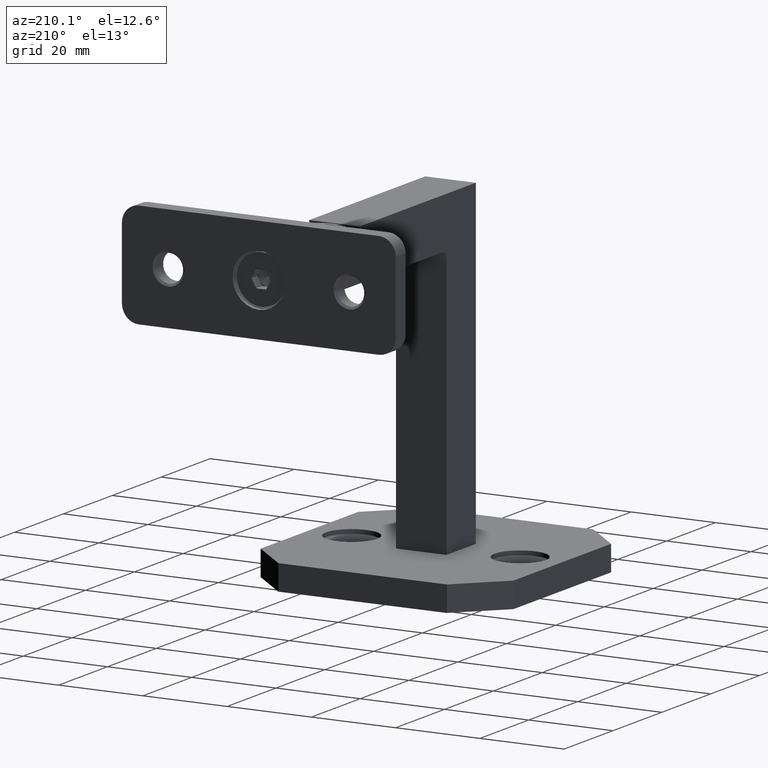
[diagram: clean part render]
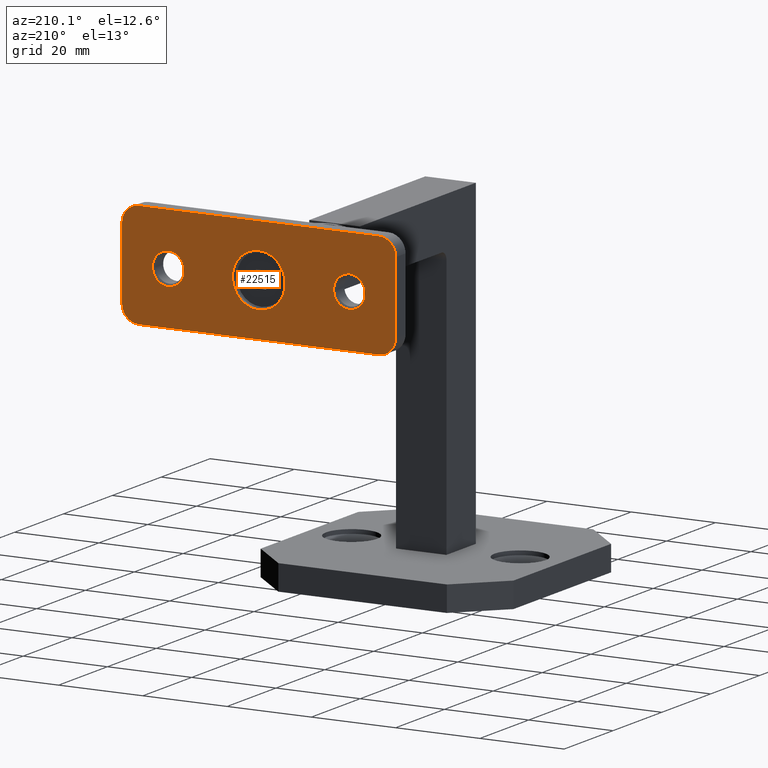
[diagram: same view with one face highlighted and labeled with its STEP entity id]
A machine part, auxiliary view. The second image highlights one B-rep face of the part: STEP entity #22515.
In plain terms, the highlighted planar face has unit normal (0, 1, 0).
Its self-contained STEP definition (entity closure, byte-faithful):
#185 = EDGE_CURVE ( 'NONE', #4837, #14212, #5706, .T. ) ;
#271 = VERTEX_POINT ( 'NONE', #8776 ) ;
#304 = DIRECTION ( 'NONE',  ( 0.000000000000000000, 0.000000000000000000, 1.000000000000000000 ) ) ;
#410 = FACE_OUTER_BOUND ( 'NONE', #23477, .T. ) ;
#511 = ORIENTED_EDGE ( 'NONE', *, *, #15464, .T. ) ;
#690 = CIRCLE ( 'NONE', #17019, 4.000000000000000000 ) ;
#985 = FACE_BOUND ( 'NONE', #10145, .T. ) ;
#1002 = ORIENTED_EDGE ( 'NONE', *, *, #13905, .T. ) ;
#1318 = VERTEX_POINT ( 'NONE', #7329 ) ;
#1459 = ORIENTED_EDGE ( 'NONE', *, *, #19440, .F. ) ;
#1466 = DIRECTION ( 'NONE',  ( -0.000000000000000000, -0.000000000000000000, -1.000000000000000000 ) ) ;
#1764 = VERTEX_POINT ( 'NONE', #14168 ) ;
#1862 = EDGE_CURVE ( 'NONE', #17295, #19484, #18775, .T. ) ;
#2083 = ORIENTED_EDGE ( 'NONE', *, *, #18250, .T. ) ;
#2089 = LINE ( 'NONE', #4942, #14882 ) ;
#2481 = AXIS2_PLACEMENT_3D ( 'NONE', #22177, #22484, #3341 ) ;
#2482 = CIRCLE ( 'NONE', #11625, 3.750000000000010214 ) ;
#2493 = CIRCLE ( 'NONE', #21485, 6.250000000000000000 ) ;
#2958 = VERTEX_POINT ( 'NONE', #20313 ) ;
#3095 = CARTESIAN_POINT ( 'NONE',  ( 32.50000000000000000, 2.000000000000000000, -8.500000000000001776 ) ) ;
#3159 = DIRECTION ( 'NONE',  ( 0.000000000000000000, 0.000000000000000000, 1.000000000000000000 ) ) ;
#3275 = CARTESIAN_POINT ( 'NONE',  ( 21.50000000000000000, 2.000000000000000000, 3.750000000000004885 ) ) ;
#3341 = DIRECTION ( 'NONE',  ( 0.000000000000000000, 0.000000000000000000, 1.000000000000000000 ) ) ;
#3775 = EDGE_CURVE ( 'NONE', #271, #20831, #2482, .T. ) ;
#3818 = DIRECTION ( 'NONE',  ( 0.000000000000000000, 1.000000000000000000, 0.000000000000000000 ) ) ;
#3820 = CARTESIAN_POINT ( 'NONE',  ( -28.50000000000000000, 2.000000000000000000, 12.49999999999999822 ) ) ;
#3840 = CARTESIAN_POINT ( 'NONE',  ( -21.50000000000000000, 2.000000000000000000, 3.750000000000010214 ) ) ;
#3978 = CARTESIAN_POINT ( 'NONE',  ( 0.000000000000000000, 2.000000000000000000, 0.000000000000000000 ) ) ;
#4048 = AXIS2_PLACEMENT_3D ( 'NONE', #13215, #16867, #11539 ) ;
#4360 = DIRECTION ( 'NONE',  ( -0.000000000000000000, 1.000000000000000000, -0.000000000000000000 ) ) ;
#4366 = EDGE_CURVE ( 'NONE', #16442, #17295, #22974, .T. ) ;
#4392 = CARTESIAN_POINT ( 'NONE',  ( -28.50000000000000000, 2.000000000000000000, -8.500000000000001776 ) ) ;
#4558 = VERTEX_POINT ( 'NONE', #3095 ) ;
#4837 = VERTEX_POINT ( 'NONE', #20719 ) ;
#4942 = CARTESIAN_POINT ( 'NONE',  ( 32.50000000000000000, 2.000000000000000000, -12.50000000000000178 ) ) ;
#4975 = CARTESIAN_POINT ( 'NONE',  ( 0.000000000000000000, 2.000000000000000000, 0.000000000000000000 ) ) ;
#5258 = CARTESIAN_POINT ( 'NONE',  ( -32.50000000000000000, 2.000000000000000000, -12.50000000000000178 ) ) ;
#5329 = CARTESIAN_POINT ( 'NONE',  ( -32.50000000000000000, 2.000000000000000000, 8.499999999999998224 ) ) ;
#5706 = LINE ( 'NONE', #5258, #12856 ) ;
#6059 = CARTESIAN_POINT ( 'NONE',  ( 7.654042494670957606E-16, 2.000000000000000000, -6.250000000000000000 ) ) ;
#6112 = EDGE_CURVE ( 'NONE', #17363, #1764, #9629, .T. ) ;
#6153 = DIRECTION ( 'NONE',  ( 0.000000000000000000, 1.000000000000000000, 0.000000000000000000 ) ) ;
#6312 = EDGE_CURVE ( 'NONE', #18045, #4837, #7921, .T. ) ;
#6399 = CIRCLE ( 'NONE', #23371, 4.000000000000000000 ) ;
#6820 = CARTESIAN_POINT ( 'NONE',  ( -21.50000000000000000, 2.000000000000000000, 0.000000000000000000 ) ) ;
#6921 = VECTOR ( 'NONE', #17992, 1000.000000000000000 ) ;
#6951 = ORIENTED_EDGE ( 'NONE', *, *, #3775, .T. ) ;
#7023 = EDGE_CURVE ( 'NONE', #1318, #20681, #9370, .T. ) ;
#7240 = LINE ( 'NONE', #8765, #6921 ) ;
#7329 = CARTESIAN_POINT ( 'NONE',  ( 21.50000000000000000, 2.000000000000000000, -3.750000000000015543 ) ) ;
#7921 = CIRCLE ( 'NONE', #16818, 4.000000000000000000 ) ;
#7994 = DIRECTION ( 'NONE',  ( 0.000000000000000000, 0.000000000000000000, 1.000000000000000000 ) ) ;
#8090 = ORIENTED_EDGE ( 'NONE', *, *, #6112, .F. ) ;
#8596 = CARTESIAN_POINT ( 'NONE',  ( 28.49999999999999645, 2.000000000000000000, -8.500000000000001776 ) ) ;
#8729 = DIRECTION ( 'NONE',  ( 0.000000000000000000, -0.000000000000000000, 1.000000000000000000 ) ) ;
#8765 = CARTESIAN_POINT ( 'NONE',  ( -32.50000000000000000, 2.000000000000000000, -12.50000000000000178 ) ) ;
#8776 = CARTESIAN_POINT ( 'NONE',  ( -21.50000000000000000, 2.000000000000000000, -3.750000000000010214 ) ) ;
#9022 = ORIENTED_EDGE ( 'NONE', *, *, #21239, .T. ) ;
#9039 = CIRCLE ( 'NONE', #20430, 3.750000000000010214 ) ;
#9139 = ORIENTED_EDGE ( 'NONE', *, *, #4366, .T. ) ;
#9370 = CIRCLE ( 'NONE', #2481, 3.750000000000010214 ) ;
#9614 = EDGE_LOOP ( 'NONE', ( #1459, #8090 ) ) ;
#9629 = CIRCLE ( 'NONE', #11490, 6.250000000000000000 ) ;
#9809 = CARTESIAN_POINT ( 'NONE',  ( 0.000000000000000000, 2.000000000000000000, 0.000000000000000000 ) ) ;
#10112 = FACE_BOUND ( 'NONE', #9614, .T. ) ;
#10145 = EDGE_LOOP ( 'NONE', ( #2083, #17657 ) ) ;
#10411 = EDGE_LOOP ( 'NONE', ( #22169, #6951 ) ) ;
#10697 = DIRECTION ( 'NONE',  ( 0.000000000000000000, 0.000000000000000000, 1.000000000000000000 ) ) ;
#10907 = CARTESIAN_POINT ( 'NONE',  ( 21.50000000000000000, 2.000000000000000000, -5.265981236333618470E-15 ) ) ;
#11073 = DIRECTION ( 'NONE',  ( 0.000000000000000000, 0.000000000000000000, 1.000000000000000000 ) ) ;
#11419 = CARTESIAN_POINT ( 'NONE',  ( 28.49999999999999645, 2.000000000000000000, 12.49999999999999822 ) ) ;
#11490 = AXIS2_PLACEMENT_3D ( 'NONE', #9809, #4360, #17411 ) ;
#11539 = DIRECTION ( 'NONE',  ( 0.000000000000000000, 0.000000000000000000, 1.000000000000000000 ) ) ;
#11625 = AXIS2_PLACEMENT_3D ( 'NONE', #6820, #23507, #3159 ) ;
#11908 = EDGE_CURVE ( 'NONE', #20831, #271, #18686, .T. ) ;
#12187 = DIRECTION ( 'NONE',  ( 0.000000000000000000, 0.000000000000000000, 1.000000000000000000 ) ) ;
#12402 = ORIENTED_EDGE ( 'NONE', *, *, #1862, .T. ) ;
#12432 = DIRECTION ( 'NONE',  ( 0.000000000000000000, 1.000000000000000000, 0.000000000000000000 ) ) ;
#12708 = AXIS2_PLACEMENT_3D ( 'NONE', #4975, #21146, #8729 ) ;
#12856 = VECTOR ( 'NONE', #23275, 1000.000000000000000 ) ;
#12917 = DIRECTION ( 'NONE',  ( -0.000000000000000000, 1.000000000000000000, -0.000000000000000000 ) ) ;
#13215 = CARTESIAN_POINT ( 'NONE',  ( -21.50000000000000000, 2.000000000000000000, 0.000000000000000000 ) ) ;
#13291 = VECTOR ( 'NONE', #16750, 1000.000000000000000 ) ;
#13905 = EDGE_CURVE ( 'NONE', #4558, #2958, #690, .T. ) ;
#13963 = EDGE_CURVE ( 'NONE', #2958, #18045, #7240, .T. ) ;
#14168 = CARTESIAN_POINT ( 'NONE',  ( 0.000000000000000000, 2.000000000000000000, 6.250000000000000000 ) ) ;
#14212 = VERTEX_POINT ( 'NONE', #5329 ) ;
#14377 = DIRECTION ( 'NONE',  ( -0.000000000000000000, -1.000000000000000000, -0.000000000000000000 ) ) ;
#14882 = VECTOR ( 'NONE', #1466, 1000.000000000000000 ) ;
#15186 = ORIENTED_EDGE ( 'NONE', *, *, #185, .T. ) ;
#15464 = EDGE_CURVE ( 'NONE', #19484, #4558, #2089, .T. ) ;
#15652 = CARTESIAN_POINT ( 'NONE',  ( -28.50000000000000000, 2.000000000000000000, -12.50000000000000178 ) ) ;
#15714 = PLANE ( 'NONE',  #12708 ) ;
#15761 = CARTESIAN_POINT ( 'NONE',  ( 28.50000000000000000, 2.000000000000000000, 8.499999999999998224 ) ) ;
#15917 = AXIS2_PLACEMENT_3D ( 'NONE', #15761, #21582, #10697 ) ;
#16366 = FACE_BOUND ( 'NONE', #10411, .T. ) ;
#16442 = VERTEX_POINT ( 'NONE', #3820 ) ;
#16549 = CARTESIAN_POINT ( 'NONE',  ( -28.50000000000000000, 2.000000000000000000, 8.499999999999998224 ) ) ;
#16750 = DIRECTION ( 'NONE',  ( 1.000000000000000000, 0.000000000000000000, 0.000000000000000000 ) ) ;
#16818 = AXIS2_PLACEMENT_3D ( 'NONE', #4392, #6153, #7994 ) ;
#16867 = DIRECTION ( 'NONE',  ( -0.000000000000000000, -1.000000000000000000, -0.000000000000000000 ) ) ;
#17019 = AXIS2_PLACEMENT_3D ( 'NONE', #8596, #12432, #12187 ) ;
#17213 = ORIENTED_EDGE ( 'NONE', *, *, #13963, .T. ) ;
#17295 = VERTEX_POINT ( 'NONE', #11419 ) ;
#17363 = VERTEX_POINT ( 'NONE', #6059 ) ;
#17411 = DIRECTION ( 'NONE',  ( 0.000000000000000000, 0.000000000000000000, 1.000000000000000000 ) ) ;
#17657 = ORIENTED_EDGE ( 'NONE', *, *, #7023, .T. ) ;
#17992 = DIRECTION ( 'NONE',  ( -1.000000000000000000, -0.000000000000000000, -0.000000000000000000 ) ) ;
#18045 = VERTEX_POINT ( 'NONE', #15652 ) ;
#18250 = EDGE_CURVE ( 'NONE', #20681, #1318, #9039, .T. ) ;
#18686 = CIRCLE ( 'NONE', #4048, 3.750000000000010214 ) ;
#18775 = CIRCLE ( 'NONE', #15917, 4.000000000000000000 ) ;
#19440 = EDGE_CURVE ( 'NONE', #1764, #17363, #2493, .T. ) ;
#19484 = VERTEX_POINT ( 'NONE', #22129 ) ;
#20313 = CARTESIAN_POINT ( 'NONE',  ( 28.49999999999999645, 2.000000000000000000, -12.50000000000000178 ) ) ;
#20416 = CARTESIAN_POINT ( 'NONE',  ( -32.50000000000000000, 2.000000000000000000, 12.49999999999999822 ) ) ;
#20430 = AXIS2_PLACEMENT_3D ( 'NONE', #10907, #14377, #23676 ) ;
#20567 = ORIENTED_EDGE ( 'NONE', *, *, #6312, .T. ) ;
#20681 = VERTEX_POINT ( 'NONE', #3275 ) ;
#20719 = CARTESIAN_POINT ( 'NONE',  ( -32.50000000000000000, 2.000000000000000000, -8.500000000000001776 ) ) ;
#20831 = VERTEX_POINT ( 'NONE', #3840 ) ;
#21146 = DIRECTION ( 'NONE',  ( 0.000000000000000000, 1.000000000000000000, 0.000000000000000000 ) ) ;
#21239 = EDGE_CURVE ( 'NONE', #14212, #16442, #6399, .T. ) ;
#21485 = AXIS2_PLACEMENT_3D ( 'NONE', #3978, #12917, #304 ) ;
#21582 = DIRECTION ( 'NONE',  ( 0.000000000000000000, 1.000000000000000000, 0.000000000000000000 ) ) ;
#22129 = CARTESIAN_POINT ( 'NONE',  ( 32.50000000000000000, 2.000000000000000000, 8.499999999999998224 ) ) ;
#22169 = ORIENTED_EDGE ( 'NONE', *, *, #11908, .T. ) ;
#22177 = CARTESIAN_POINT ( 'NONE',  ( 21.50000000000000000, 2.000000000000000000, -5.265981236333618470E-15 ) ) ;
#22484 = DIRECTION ( 'NONE',  ( -0.000000000000000000, -1.000000000000000000, -0.000000000000000000 ) ) ;
#22515 = ADVANCED_FACE ( 'NONE', ( #10112, #985, #16366, #410 ), #15714, .T. ) ;
#22974 = LINE ( 'NONE', #20416, #13291 ) ;
#23275 = DIRECTION ( 'NONE',  ( 0.000000000000000000, 0.000000000000000000, 1.000000000000000000 ) ) ;
#23371 = AXIS2_PLACEMENT_3D ( 'NONE', #16549, #3818, #11073 ) ;
#23477 = EDGE_LOOP ( 'NONE', ( #15186, #9022, #9139, #12402, #511, #1002, #17213, #20567 ) ) ;
#23507 = DIRECTION ( 'NONE',  ( -0.000000000000000000, -1.000000000000000000, -0.000000000000000000 ) ) ;
#23676 = DIRECTION ( 'NONE',  ( 0.000000000000000000, 0.000000000000000000, 1.000000000000000000 ) ) ;